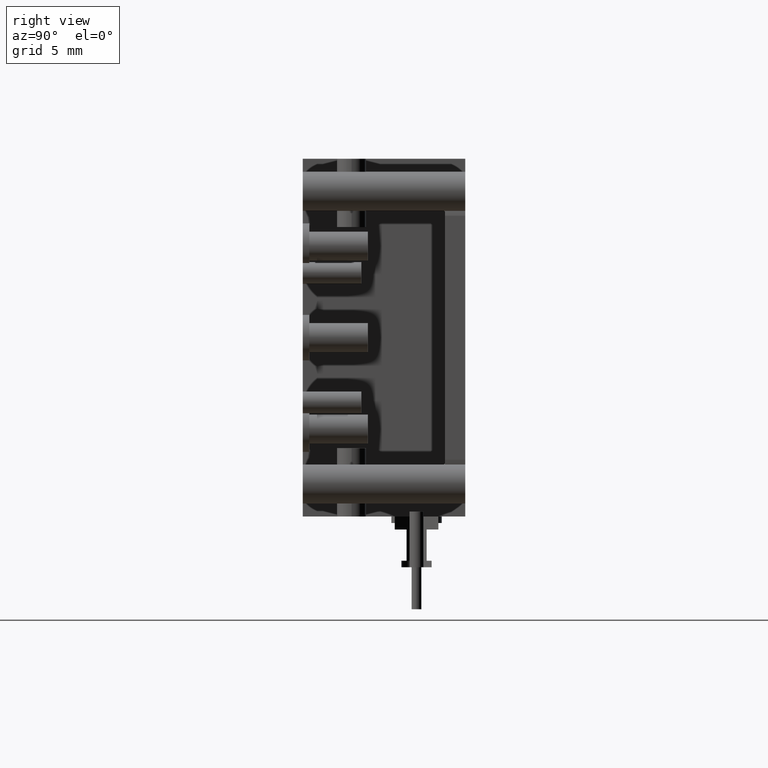
[diagram: clean part render]
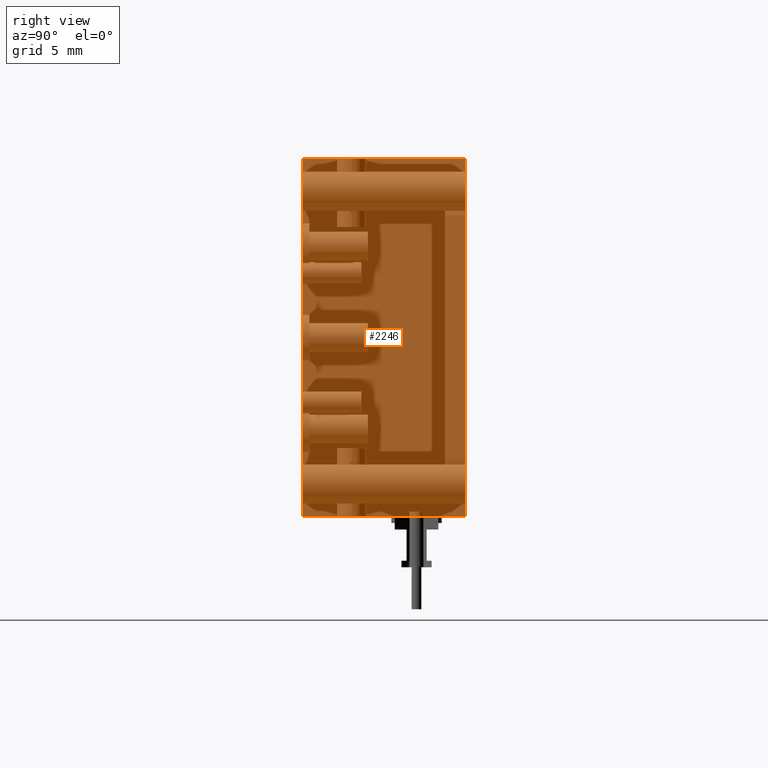
[diagram: same view with one face highlighted and labeled with its STEP entity id]
A machine part, right view. The second image highlights one B-rep face of the part: STEP entity #2246.
In plain terms, the highlighted planar face has unit normal (-1, 0, 0).
Its self-contained STEP definition (entity closure, byte-faithful):
#177 = CARTESIAN_POINT ( 'NONE',  ( 0.7606823744848006900, 2.059071440405353400, 1.036575843332745400 ) ) ;
#274 = CARTESIAN_POINT ( 'NONE',  ( 0.7606823744848006900, 1.559071440405353200, -0.06342415666725478900 ) ) ;
#475 = LINE ( 'NONE', #7266, #5026 ) ;
#1128 = DIRECTION ( 'NONE',  ( 0.0000000000000000000, 1.000000000000000000, -0.0000000000000000000 ) ) ;
#1318 = EDGE_CURVE ( 'NONE', #4111, #3539, #5771, .T. ) ;
#1416 = CARTESIAN_POINT ( 'NONE',  ( 0.7606823744848006900, 1.559071440405353200, 1.036575843332745400 ) ) ;
#1736 = EDGE_LOOP ( 'NONE', ( #4892, #7018, #4341, #3157 ) ) ;
#1786 = DIRECTION ( 'NONE',  ( -0.0000000000000000000, 1.000000000000000000, -4.034922934952130600E-032 ) ) ;
#2246 = ADVANCED_FACE ( 'NONE', ( #6571 ), #6712, .T. ) ;
#2315 = CARTESIAN_POINT ( 'NONE',  ( 0.7606823744848006900, 2.059071440405353400, -0.06342415666725474700 ) ) ;
#2636 = VECTOR ( 'NONE', #1128, 39.37007874015748100 ) ;
#2914 = EDGE_CURVE ( 'NONE', #3217, #3539, #5617, .T. ) ;
#3157 = ORIENTED_EDGE ( 'NONE', *, *, #2914, .T. ) ;
#3217 = VERTEX_POINT ( 'NONE', #7022 ) ;
#3537 = VECTOR ( 'NONE', #1786, 39.37007874015748100 ) ;
#3539 = VERTEX_POINT ( 'NONE', #4582 ) ;
#3548 = CARTESIAN_POINT ( 'NONE',  ( 0.7606823744848006900, 2.059071440405353400, 1.036575843332745400 ) ) ;
#3962 = AXIS2_PLACEMENT_3D ( 'NONE', #3548, #5990, #5446 ) ;
#4111 = VERTEX_POINT ( 'NONE', #274 ) ;
#4341 = ORIENTED_EDGE ( 'NONE', *, *, #6108, .T. ) ;
#4582 = CARTESIAN_POINT ( 'NONE',  ( 0.7606823744848006900, 2.059071440405353400, -0.06342415666725478900 ) ) ;
#4892 = ORIENTED_EDGE ( 'NONE', *, *, #1318, .F. ) ;
#5026 = VECTOR ( 'NONE', #7216, 39.37007874015748100 ) ;
#5446 = DIRECTION ( 'NONE',  ( 0.0000000000000000000, 0.0000000000000000000, 1.000000000000000000 ) ) ;
#5499 = CARTESIAN_POINT ( 'NONE',  ( 0.7606823744848006900, 2.059071440405353400, 1.036575843332745400 ) ) ;
#5617 = LINE ( 'NONE', #177, #6951 ) ;
#5642 = VERTEX_POINT ( 'NONE', #1416 ) ;
#5771 = LINE ( 'NONE', #2315, #3537 ) ;
#5990 = DIRECTION ( 'NONE',  ( -1.000000000000000000, 0.0000000000000000000, 0.0000000000000000000 ) ) ;
#6108 = EDGE_CURVE ( 'NONE', #5642, #3217, #6410, .T. ) ;
#6410 = LINE ( 'NONE', #5499, #2636 ) ;
#6571 = FACE_OUTER_BOUND ( 'NONE', #1736, .T. ) ;
#6712 = PLANE ( 'NONE',  #3962 ) ;
#6788 = DIRECTION ( 'NONE',  ( -0.0000000000000000000, -0.0000000000000000000, -1.000000000000000000 ) ) ;
#6951 = VECTOR ( 'NONE', #6788, 39.37007874015748100 ) ;
#7018 = ORIENTED_EDGE ( 'NONE', *, *, #7346, .F. ) ;
#7022 = CARTESIAN_POINT ( 'NONE',  ( 0.7606823744848006900, 2.059071440405353400, 1.036575843332745400 ) ) ;
#7216 = DIRECTION ( 'NONE',  ( -0.0000000000000000000, 0.0000000000000000000, -1.000000000000000000 ) ) ;
#7266 = CARTESIAN_POINT ( 'NONE',  ( 0.7606823744848006900, 1.559071440405353200, 0.4865758433327456200 ) ) ;
#7346 = EDGE_CURVE ( 'NONE', #5642, #4111, #475, .T. ) ;